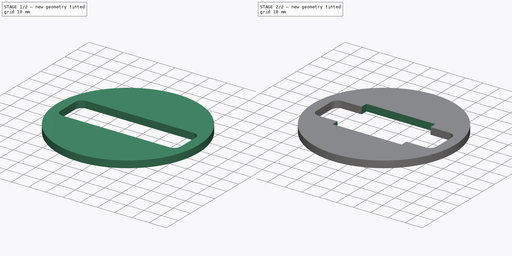
[diagram: build sequence overview — one tinted view per stage of 2, left to right]
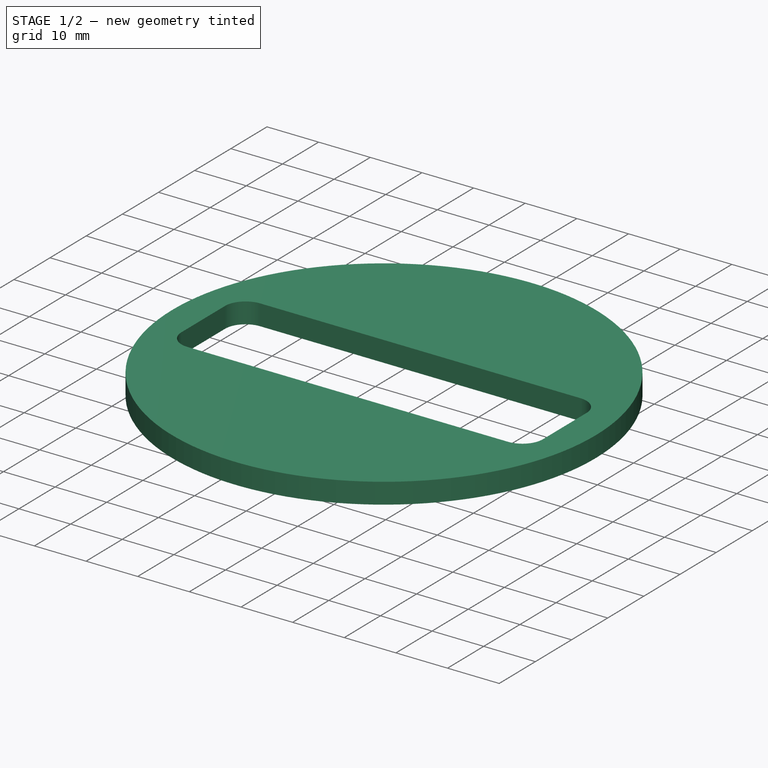
[diagram: stage 1 of 2 — iso view after this stage's code; geometry added in this stage tinted green]
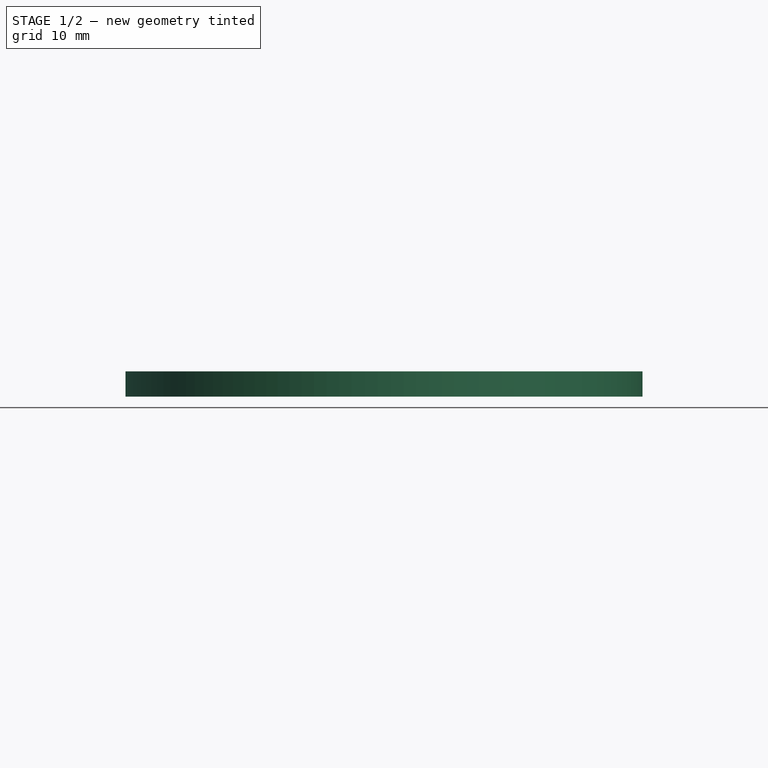
[diagram: stage 1 of 2 — front view after this stage's code; geometry added in this stage tinted green]
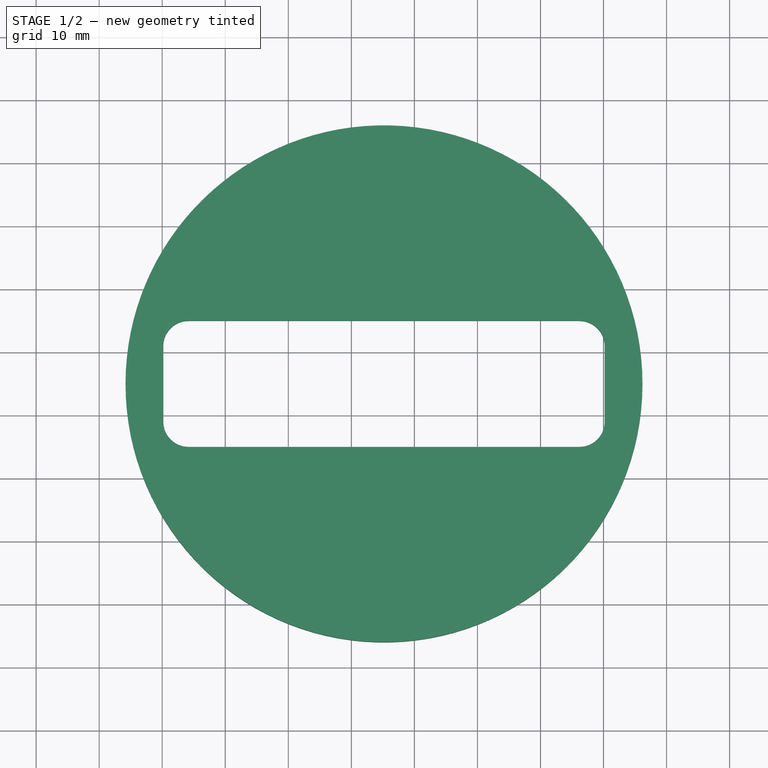
[diagram: stage 1 of 2 — top view after this stage's code; geometry added in this stage tinted green]
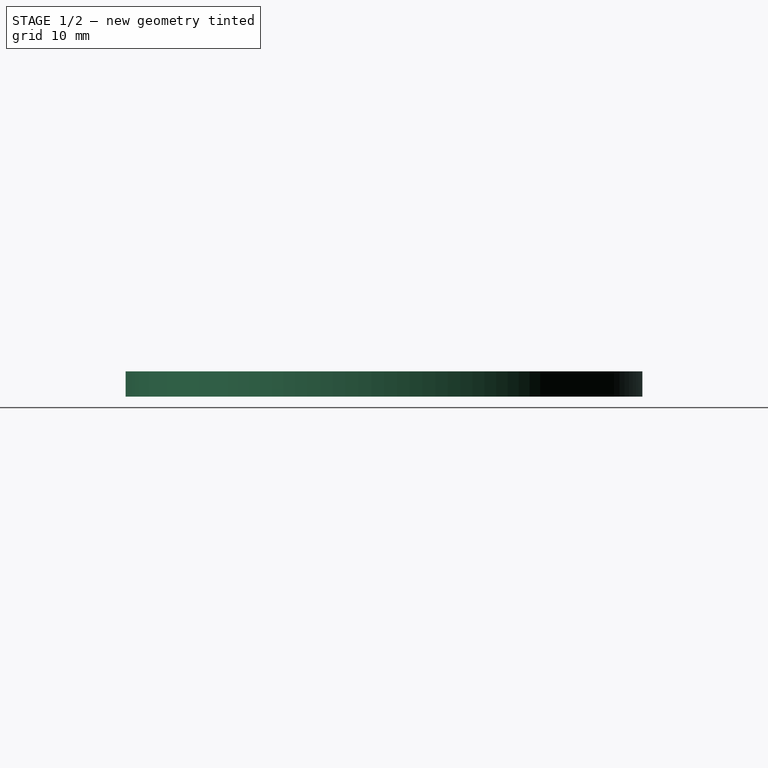
[diagram: stage 1 of 2 — right view after this stage's code; geometry added in this stage tinted green]
FCSTD DOCUMENT  (FreeCAD 1.0R39319 (Git))
Label: stearing_A
License: All rights reserved
LicenseURL: https://en.wikipedia.org/wiki/All_rights_reserved
objects: Sketcher::SketchObject×5, PartDesign::Pocket×3, PartDesign::Pad×1, PartDesign::Body×1
note: 23 computed .brp shape members not serialized (recipe doc carries the construction recipe); baked Part::Feature solids carry a one-line shape summary decoded from their .brp

FEATURE [Sketcher::SketchObject] Sketch001
  ArcFitTolerance = 1e-06
  AttachmentSupport = -> [XY_Plane]
  FullyConstrained = false
  MakeInternals = false
  MapMode = 5
  sketch-geometry (8):
    g0: LineSegment StartX=0 StartY=4.263e-13 StartZ=0 EndX=186.825 EndY=4.263e-13 EndZ=0
    g1: LineSegment StartX=250 StartY=63.1748 StartZ=0 EndX=250 EndY=83.3235 EndZ=0
    g2: LineSegment StartX=183.324 StartY=150 StartZ=0 EndX=0 EndY=150 EndZ=0
    g3: LineSegment StartX=0 StartY=150 StartZ=0 EndX=0 EndY=4.263e-13 EndZ=0
    g4: ArcOfCircle CenterX=183.324 CenterY=83.3235 CenterZ=0 NormalX=0 NormalY=0 NormalZ=1 AngleXU=0 Radius=66.6765 StartAngle=0 EndAngle=1.5708
    g5: GeomPoint [constr] X=250 Y=150 Z=0
    g6: ArcOfCircle CenterX=186.825 CenterY=63.1748 CenterZ=0 NormalX=0 NormalY=0 NormalZ=1 AngleXU=0 Radius=63.1748 StartAngle=4.71239 EndAngle=6.28319
    g7: GeomPoint [constr] X=250 Y=0 Z=0
  constraints (17):
    c: Coincident(g2,g3)
    c: Coincident(g3,g0)
    c: Horizontal(g0)
    c: Horizontal(g2)
    c: Vertical(g1)
    c: Vertical(g3)
    c: Coincident(g0,g-1)
    c: DistanceX(g2,g5) = 250
    c: DistanceY(g3,g3) = 150
    c: PointOnObject(g5,g2)
    c: PointOnObject(g5,g1)
    c: Tangent(g2,g4) = -1.5708
    c: Tangent(g1,g4) = -1.5708
    c: PointOnObject(g7,g0)
    c: PointOnObject(g7,g1)
    c: Tangent(g0,g6) = -1.5708
    c: Tangent(g1,g6) = -1.5708
FEATURE [Sketcher::SketchObject] Sketch
  ArcFitTolerance = 1e-06
  FullyConstrained = false
  MakeInternals = false
  MapMode = 5
  Placement = pos=(0,0,4) rot=(0,0,1;0rad)
  sketch-geometry (18):
    g0: Circle [constr] CenterX=195.18 CenterY=75 CenterZ=0 NormalX=0 NormalY=0 NormalZ=1 AngleXU=0 Radius=42.5
    g1: LineSegment [constr] StartX=195.18 StartY=75 StartZ=0 EndX=195.18 EndY=150 EndZ=0
    g2: LineSegment [constr] StartX=195.18 StartY=75 StartZ=0 EndX=195.18 EndY=0 EndZ=0
    g3: LineSegment [constr] StartX=195.18 StartY=75 StartZ=0 EndX=195.18 EndY=85 EndZ=0
    g4: LineSegment [constr] StartX=195.18 StartY=75 StartZ=0 EndX=195.18 EndY=65 EndZ=0
    g5: LineSegment StartX=195.18 StartY=65 StartZ=0 EndX=226.18 EndY=65 EndZ=0
    g6: LineSegment StartX=230.18 StartY=69 StartZ=0 EndX=230.18 EndY=81 EndZ=0
    g7: LineSegment StartX=226.18 StartY=85 StartZ=0 EndX=195.18 EndY=85 EndZ=0
    g8: LineSegment StartX=195.18 StartY=85 StartZ=0 EndX=164.18 EndY=85 EndZ=0
    g9: LineSegment StartX=160.18 StartY=81 StartZ=0 EndX=160.18 EndY=69 EndZ=0
    g10: LineSegment StartX=164.18 StartY=65 StartZ=0 EndX=195.18 EndY=65 EndZ=0
    g11: Circle CenterX=195.18 CenterY=75 CenterZ=0 NormalX=0 NormalY=0 NormalZ=1 AngleXU=0 Radius=41
    g12: ArcOfCircle CenterX=164.18 CenterY=81 CenterZ=0 NormalX=0 NormalY=0 NormalZ=1 AngleXU=0 Radius=4 StartAngle=1.5708 EndAngle=3.14159
    g13: ArcOfCircle CenterX=164.18 CenterY=69 CenterZ=0 NormalX=0 NormalY=0 NormalZ=1 AngleXU=0 Radius=4 StartAngle=3.14159 EndAngle=4.71239
    g14: ArcOfCircle CenterX=226.18 CenterY=69 CenterZ=0 NormalX=0 NormalY=0 NormalZ=1 AngleXU=0 Radius=4 StartAngle=4.71239 EndAngle=6.28319
    g15: ArcOfCircle CenterX=226.18 CenterY=81 CenterZ=0 NormalX=0 NormalY=0 NormalZ=1 AngleXU=0 Radius=4 StartAngle=-9e-16 EndAngle=1.5708
    g16: LineSegment [constr] StartX=164.18 StartY=85 StartZ=0 EndX=195.18 EndY=112.5 EndZ=0
    g17: LineSegment [constr] StartX=195.18 StartY=112.5 StartZ=0 EndX=226.18 EndY=85 EndZ=0
  constraints (44):
    c: Diameter(g0) = 85
    c: Coincident(g1,g0)
    c: PointOnObject(g1,g-3)
    c: Vertical(g1)
    c: Coincident(g2,g0)
    c: PointOnObject(g2,g-4)
    c: Vertical(g2)
    c: Equal(g2,g1)
    c: Coincident(g3,g0)
    c: PointOnObject(g3,g1)
    c: Coincident(g4,g0)
    c: PointOnObject(g4,g2)
    c: Coincident(g5,g4)
    c: Horizontal(g5)
    c: Vertical(g6)
    c: Coincident(g7,g3)
    c: Horizontal(g7)
    c: Coincident(g8,g3)
    c: Horizontal(g8)
    c: Vertical(g9)
    c: Coincident(g10,g4)
    c: Horizontal(g10)
    c: Equal(g4,g3)
    c: Coincident(g11,g0)
    c: Diameter(g11) = 82
    c: Tangent(g9,g12) = -1.5708
    c: Tangent(g8,g12) = -1.5708
    c: Tangent(g9,g13) = -1.5708
    c: Tangent(g10,g13) = -1.5708
    c: Tangent(g5,g14) = -1.5708
    c: Tangent(g6,g14) = -1.5708
    c: Tangent(g6,g15) = -1.5708
    c: Tangent(g7,g15) = -1.5708
    c: Equal(g12,g13)
    c: Equal(g13,g14)
    c: Equal(g14,g15)
    c: Radius(g12) = 4
    c: DistanceY(g4,g3) = 20
    c: DistanceX(g9,g6) = 70
    c: Coincident(g16,g8)
    c: Symmetric(g1,g1,g16)
    c: Coincident(g17,g16)
    c: Coincident(g17,g7)
    c: Equal(g17,g16)
FEATURE [PartDesign::Pad] Pad
  Direction = (0,0,1)
  Length = 4
  Length2 = 10
  Placement = pos=(0,0,4) rot=(0,0,1;0rad)
  Profile = -> Sketch
  ReferenceAxis = -> Sketch [N_Axis]
  Refine = true
  Suppressed = false
  Type = 0
FEATURE [Sketcher::SketchObject] Sketch002
  ArcFitTolerance = 1e-06
  AttachmentSupport = -> [Pad]
  ExternalGeometry = -> [Pad]
  FullyConstrained = true
  MakeInternals = false
  MapMode = 5
  Placement = pos=(0,0,8) rot=(0,0,1;0rad)
  sketch-geometry (11):
    g0: LineSegment [constr] StartX=164.18 StartY=85 StartZ=0 EndX=226.18 EndY=65 EndZ=0
    g1: LineSegment [constr] StartX=226.18 StartY=85 StartZ=0 EndX=164.18 EndY=65 EndZ=0
    g2: LineSegment [constr] StartX=195.18 StartY=75 StartZ=0 EndX=195.18 EndY=85 EndZ=0
    g3: LineSegment [constr] StartX=195.18 StartY=85 StartZ=0 EndX=195.18 EndY=97.5 EndZ=0
    g4: LineSegment [constr] StartX=195.18 StartY=97.5 StartZ=0 EndX=193.18 EndY=97.5 EndZ=0
    g5: LineSegment [constr] StartX=195.18 StartY=97.5 StartZ=0 EndX=197.18 EndY=97.5 EndZ=0
    g6: LineSegment StartX=193.18 StartY=97.5 StartZ=0 EndX=193.18 EndY=52.5 EndZ=0
    g7: LineSegment StartX=193.18 StartY=52.5 StartZ=0 EndX=197.18 EndY=52.5 EndZ=0
    g8: LineSegment StartX=197.18 StartY=52.5 StartZ=0 EndX=197.18 EndY=97.5 EndZ=0
    g9: LineSegment StartX=197.18 StartY=97.5 StartZ=0 EndX=193.18 EndY=97.5 EndZ=0
    g10: LineSegment [constr] StartX=195.18 StartY=65 StartZ=0 EndX=195.18 EndY=52.5 EndZ=0
  constraints (27):
    c: Coincident(g0,g-3)
    c: Coincident(g0,g-4)
    c: Coincident(g1,g-3)
    c: Coincident(g1,g-4)
    c: Symmetric(g0,g0,g2)
    c: Symmetric(g-3,g-3,g2)
    c: Coincident(g3,g2)
    c: Vertical(g3)
    c: Coincident(g4,g3)
    c: Horizontal(g4)
    c: Coincident(g5,g3)
    c: Equal(g4,g5)
    c: Coincident(g6,g7)
    c: Coincident(g7,g8)
    c: Coincident(g8,g9)
    c: Coincident(g9,g6)
    c: Vertical(g6)
    c: Vertical(g8)
    c: Horizontal(g7)
    c: Horizontal(g9)
    c: Coincident(g6,g4)
    c: Coincident(g8,g5)
    c: Symmetric(g-4,g-4,g10)
    c: Symmetric(g7,g7,g10)
    c: Equal(g3,g10)
    c: DistanceY(g7,g5) = 45
    c: DistanceX(g4,g5) = 4
FEATURE [PartDesign::Pocket] Pocket
  BaseFeature = -> Pad
  Direction = (0,0,-1)
  Length = 5
  Length2 = 5
  Placement = pos=(0,0,4) rot=(0,0,1;0rad)
  Profile = -> Sketch002
  ReferenceAxis = -> Sketch002 [N_Axis]
  Refine = true
  Suppressed = true
  Type = 0
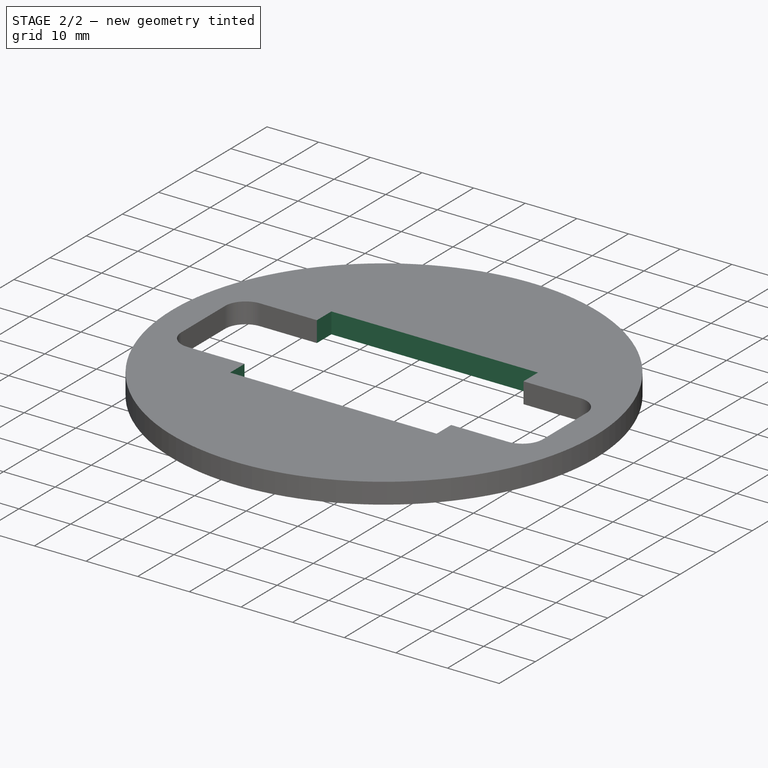
[diagram: stage 2 of 2 — iso view after this stage's code; geometry added in this stage tinted green]
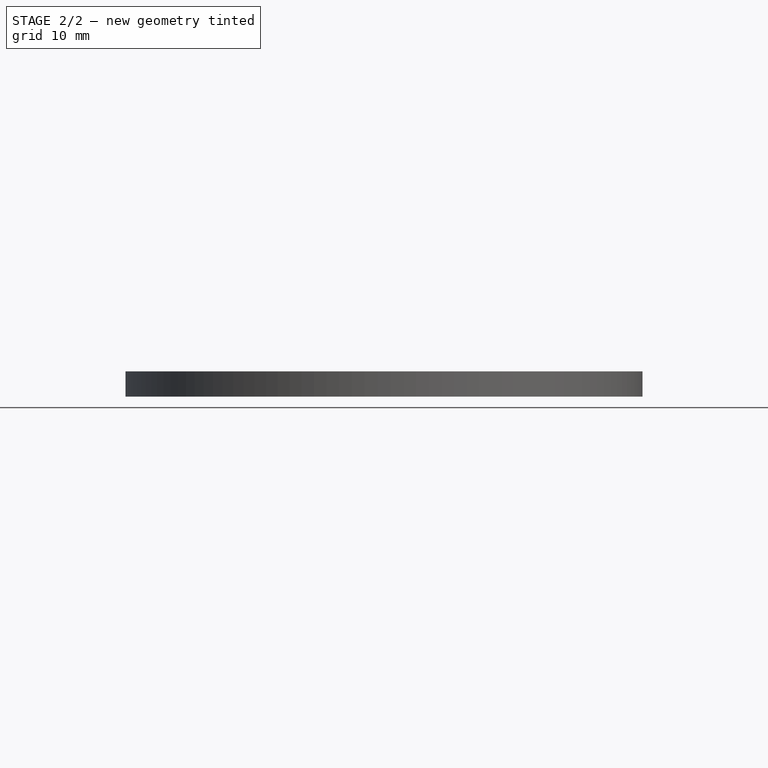
[diagram: stage 2 of 2 — front view after this stage's code; geometry added in this stage tinted green]
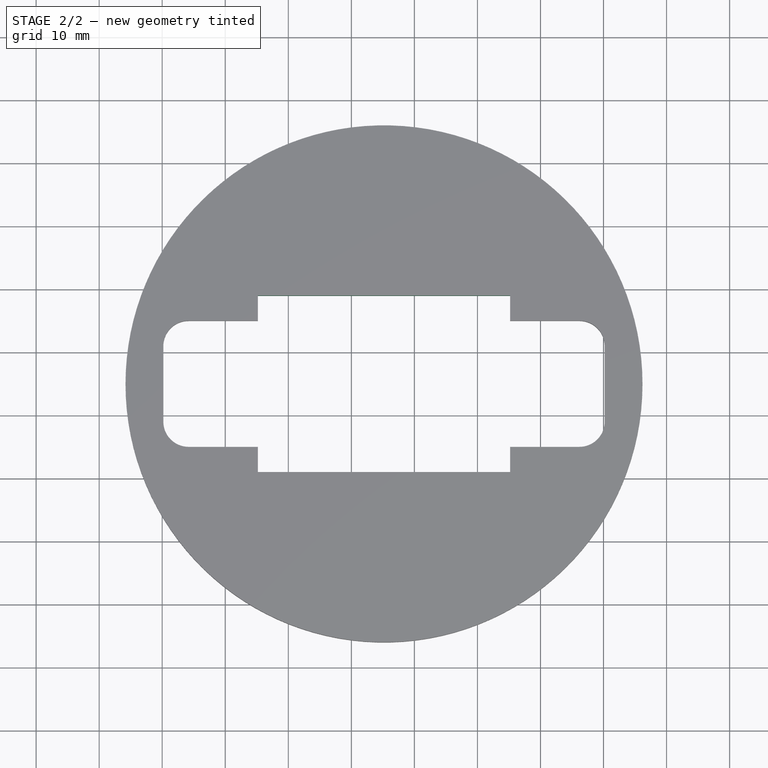
[diagram: stage 2 of 2 — top view after this stage's code; geometry added in this stage tinted green]
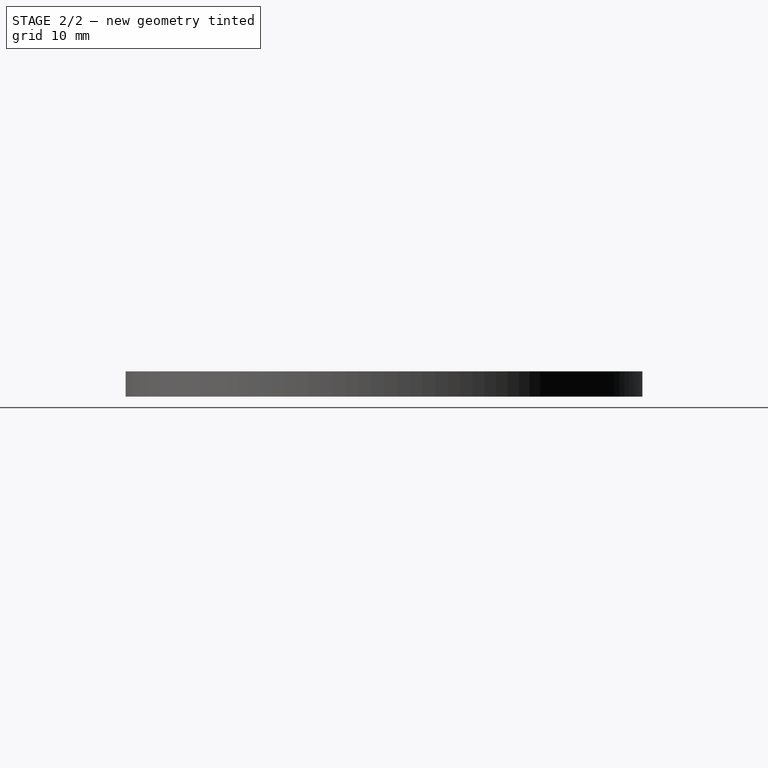
[diagram: stage 2 of 2 — right view after this stage's code; geometry added in this stage tinted green]
FEATURE [Sketcher::SketchObject] Sketch003
  ArcFitTolerance = 1e-06
  AttachmentSupport = -> [Pocket]
  ExternalGeometry = -> [Sketch]
  FullyConstrained = true
  MakeInternals = false
  MapMode = 5
  Placement = pos=(0,0,8) rot=(0,0,1;0rad)
  sketch-geometry (5):
    g0: LineSegment StartX=189.18 StartY=66 StartZ=0 EndX=189.18 EndY=57 EndZ=0
    g1: LineSegment StartX=189.18 StartY=57 StartZ=0 EndX=201.18 EndY=57 EndZ=0
    g2: LineSegment StartX=201.18 StartY=57 StartZ=0 EndX=201.18 EndY=66 EndZ=0
    g3: LineSegment StartX=189.18 StartY=66 StartZ=0 EndX=195.18 EndY=66 EndZ=0
    g4: LineSegment StartX=195.18 StartY=66 StartZ=0 EndX=201.18 EndY=66 EndZ=0
  constraints (15):
    c: Coincident(g0,g1)
    c: Coincident(g1,g2)
    c: Vertical(g0)
    c: Vertical(g2)
    c: Horizontal(g1)
    c: Coincident(g3,g0)
    c: Horizontal(g3)
    c: Coincident(g4,g3)
    c: Coincident(g4,g2)
    c: Horizontal(g4)
    c: Equal(g4,g3)
    c: Vertical(g3,g-3)
    c: DistanceX(g0,g1) = 12
    c: DistanceY(g-3,g3) = 1
    c: DistanceY(g1,g-3) = 8
FEATURE [PartDesign::Pocket] Pocket001
  BaseFeature = -> Pocket
  Direction = (0,0,-1)
  Length = 5
  Length2 = 5
  Placement = pos=(0,0,4) rot=(0,0,1;0rad)
  Profile = -> Sketch003
  ReferenceAxis = -> Sketch003 [N_Axis]
  Refine = true
  Suppressed = true
  Type = 0
FEATURE [Sketcher::SketchObject] Sketch004
  ArcFitTolerance = 1e-06
  AttachmentSupport = -> [XY_Plane]
  ExternalGeometry = -> [Pocket001]
  FullyConstrained = true
  MakeInternals = false
  MapMode = 5
  sketch-geometry (10):
    g0: LineSegment StartX=175.18 StartY=65 StartZ=0 EndX=175.18 EndY=61 EndZ=0
    g1: LineSegment StartX=175.18 StartY=61 StartZ=0 EndX=215.18 EndY=61 EndZ=0
    g2: LineSegment StartX=215.18 StartY=61 StartZ=0 EndX=215.18 EndY=65 EndZ=0
    g3: LineSegment StartX=215.18 StartY=65 StartZ=0 EndX=175.18 EndY=65 EndZ=0
    g4: LineSegment StartX=175.18 StartY=85 StartZ=0 EndX=215.18 EndY=85 EndZ=0
    g5: LineSegment StartX=215.18 StartY=85 StartZ=0 EndX=215.18 EndY=89 EndZ=0
    g6: LineSegment StartX=215.18 StartY=89 StartZ=0 EndX=175.18 EndY=89 EndZ=0
    g7: LineSegment StartX=175.18 StartY=89 StartZ=0 EndX=175.18 EndY=85 EndZ=0
    g8: LineSegment [constr] StartX=175.18 StartY=89 StartZ=0 EndX=164.18 EndY=85 EndZ=0
    g9: LineSegment [constr] StartX=226.18 StartY=85 StartZ=0 EndX=215.18 EndY=89 EndZ=0
  constraints (28):
    c: Coincident(g0,g1)
    c: Coincident(g1,g2)
    c: Coincident(g2,g3)
    c: Coincident(g3,g0)
    c: Vertical(g0)
    c: Vertical(g2)
    c: Horizontal(g1)
    c: Horizontal(g3)
    c: PointOnObject(g0,g-4)
    c: Coincident(g4,g5)
    c: Coincident(g5,g6)
    c: Coincident(g6,g7)
    c: Coincident(g7,g4)
    c: Horizontal(g4)
    c: Horizontal(g6)
    c: Vertical(g5)
    c: Vertical(g7)
    c: PointOnObject(g4,g-3)
    c: Vertical(g4,g2)
    c: Equal(g6,g1)
    c: DistanceX(g1,g1) = 40
    c: Equal(g0,g7)
    c: DistanceY(g0,g0) = 4
    c: Coincident(g8,g6)
    c: Coincident(g8,g-3)
    c: Coincident(g9,g-3)
    c: Coincident(g9,g5)
    c: Equal(g9,g8)
FEATURE [PartDesign::Pocket] Pocket002
  BaseFeature = -> Pocket001
  Direction = (0,0,-1)
  Length = 5
  Length2 = 5
  Placement = pos=(0,0,4) rot=(0,0,1;0rad)
  Profile = -> Sketch004
  ReferenceAxis = -> Sketch004 [N_Axis]
  Refine = true
  Reversed = true
  Suppressed = false
  Type = 1
FEATURE [PartDesign::Body] Body
  AllowCompound = false
  Group = -> [Sketch001,Sketch,Pad,Sketch002,Pocket,Sketch003,Pocket001,Sketch004,Pocket002]
  Origin = -> Origin
  Tip = -> Pocket002
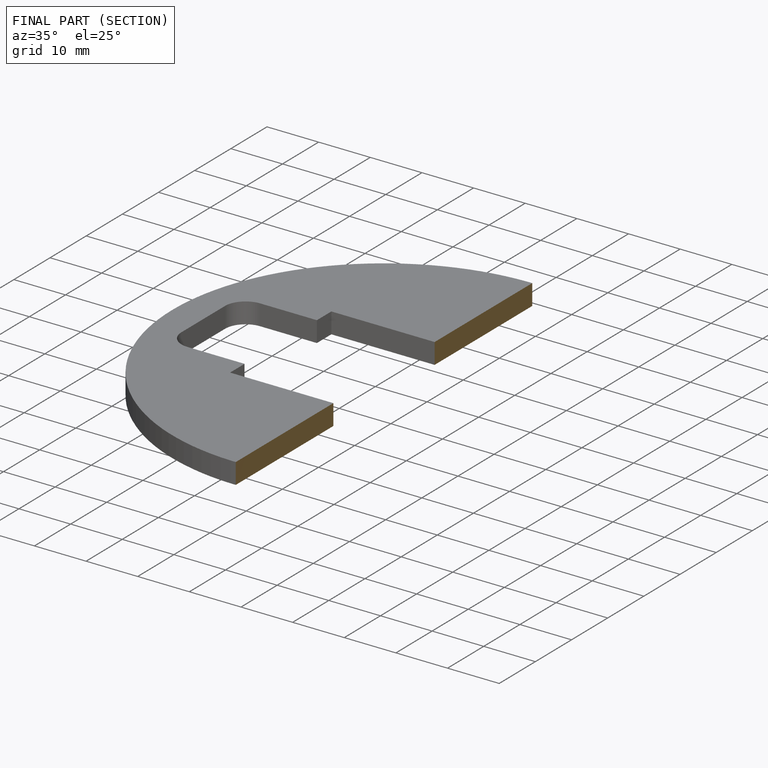
[diagram: finished part — half-section view (interior)]
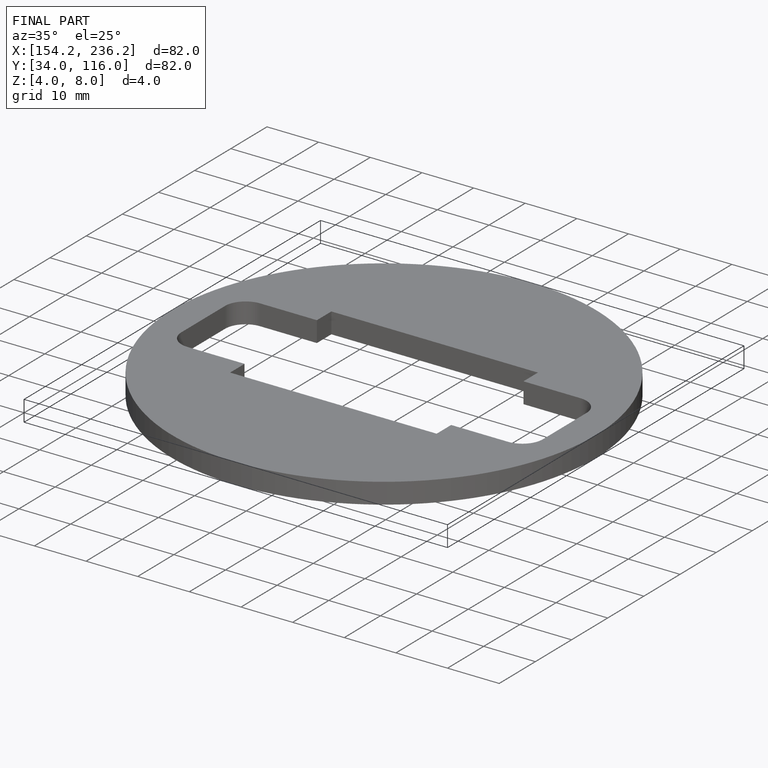
[diagram: finished part — iso view with bounding-box wireframe]
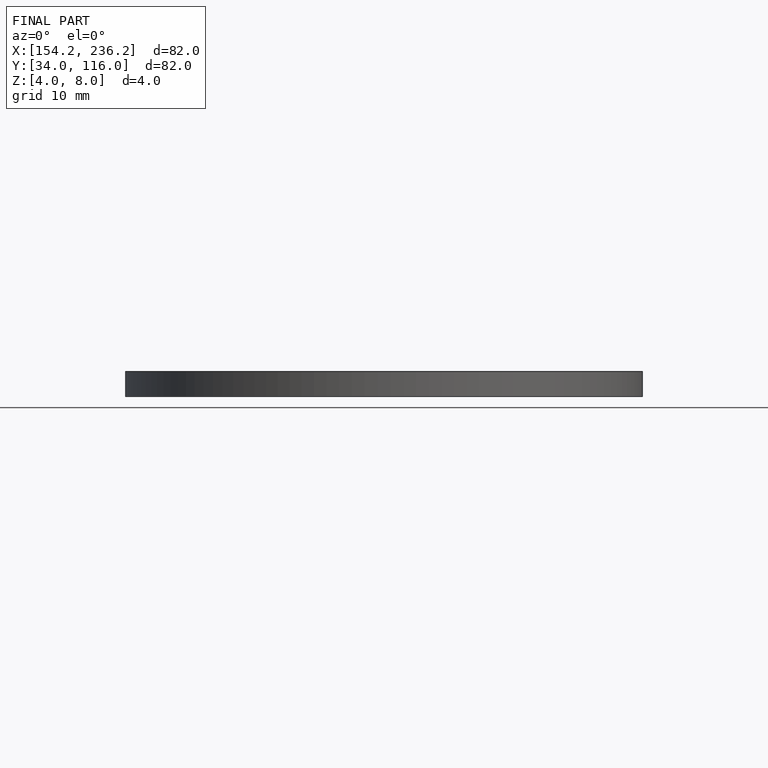
[diagram: finished part — front view with bounding-box wireframe]
